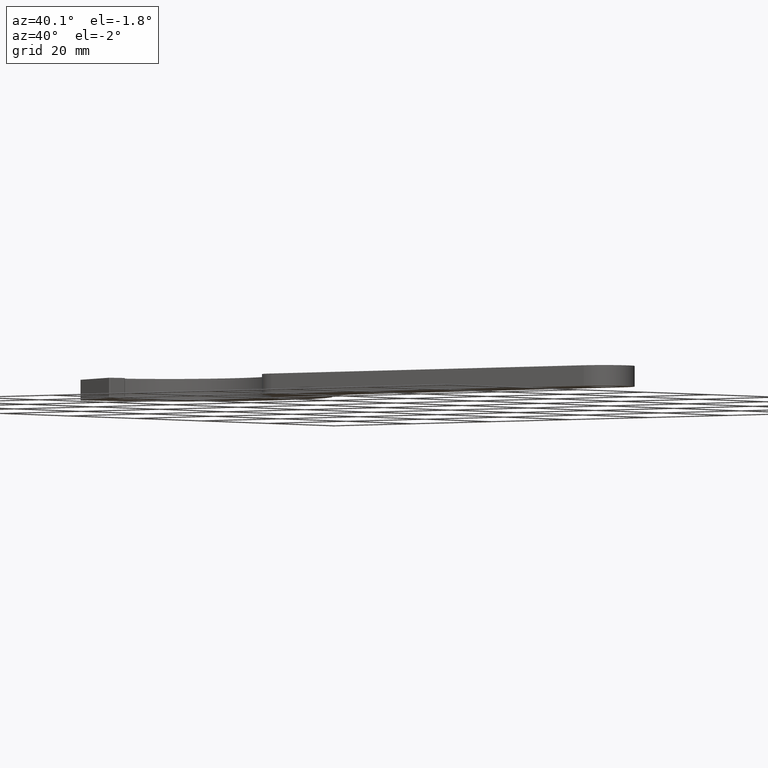
[diagram: clean part render]
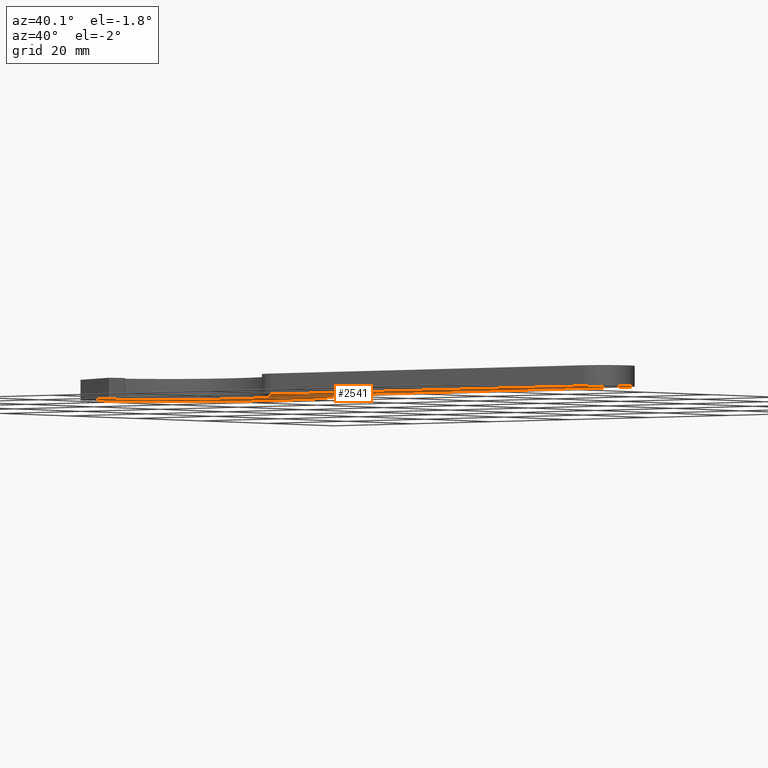
[diagram: same view with one face highlighted and labeled with its STEP entity id]
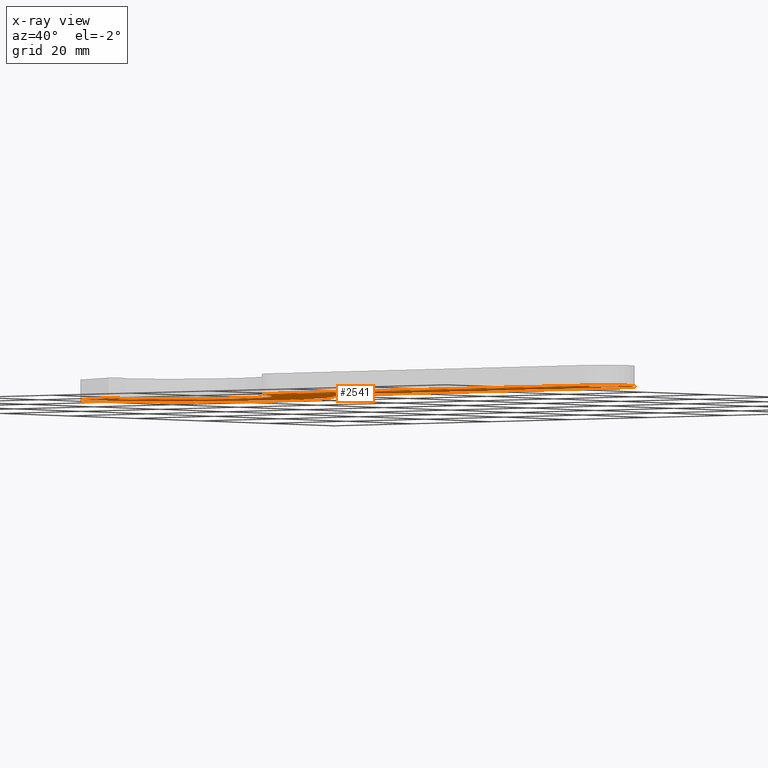
[diagram: x-ray of the same camera — body ghosted, the highlighted face saturated]
A machine part, auxiliary view. The second image highlights one B-rep face of the part: STEP entity #2541.
The next image is the same camera in x-ray: the body ghosted, the highlighted face saturated — about 0% of this face is hidden behind the body in this view.
In plain terms, the highlighted planar face has unit normal (0, 0, 1).
Its self-contained STEP definition (entity closure, byte-faithful):
#39 = ORIENTED_EDGE ( 'NONE', *, *, #7185, .F. ) ;
#66 = CARTESIAN_POINT ( 'NONE',  ( 12.43866118405925100, -5.769187135466530900, 0.0000000000000000000 ) ) ;
#141 = CARTESIAN_POINT ( 'NONE',  ( 132.4844145945849900, 6.274367385746950600, 0.0000000000000000000 ) ) ;
#208 = EDGE_CURVE ( 'NONE', #4478, #6249, #1849, .T. ) ;
#224 = DIRECTION ( 'NONE',  ( -0.0000000000000000000, -0.0000000000000000000, -1.000000000000000000 ) ) ;
#285 = EDGE_CURVE ( 'NONE', #8497, #1738, #3184, .T. ) ;
#286 = DIRECTION ( 'NONE',  ( -1.000000000000000000, 0.0000000000000000000, 0.0000000000000000000 ) ) ;
#320 = CARTESIAN_POINT ( 'NONE',  ( -0.1404072133028077500, 0.2246985115747501800, 0.0000000000000000000 ) ) ;
#342 = DIRECTION ( 'NONE',  ( 0.8987940462991024200, -0.4383711467892096900, -0.0000000000000000000 ) ) ;
#362 = DIRECTION ( 'NONE',  ( 1.000000000000000000, 0.0000000000000000000, 0.0000000000000000000 ) ) ;
#453 = CARTESIAN_POINT ( 'NONE',  ( 13.41755920003658900, -2.678962734651384900, 0.0000000000000000000 ) ) ;
#461 = CIRCLE ( 'NONE', #3595, 17.00000000000000000 ) ;
#519 = DIRECTION ( 'NONE',  ( 1.000000000000000000, 0.0000000000000000000, 0.0000000000000000000 ) ) ;
#548 = ORIENTED_EDGE ( 'NONE', *, *, #3140, .F. ) ;
#826 = CARTESIAN_POINT ( 'NONE',  ( 132.4844145945849900, 0.2743673857469433000, 0.0000000000000000000 ) ) ;
#831 = EDGE_CURVE ( 'NONE', #6622, #2778, #3787, .T. ) ;
#899 = CIRCLE ( 'NONE', #5508, 0.2500000000001005300 ) ;
#997 = EDGE_LOOP ( 'NONE', ( #3472, #548, #5222, #2917, #3012, #2062, #1603, #8109, #2109, #39, #7732, #3843, #5012, #3929 ) ) ;
#1047 = EDGE_CURVE ( 'NONE', #2778, #7964, #7898, .T. ) ;
#1311 = CARTESIAN_POINT ( 'NONE',  ( 132.4844145945849900, -5.725632614253061800, 0.0000000000000000000 ) ) ;
#1352 = DIRECTION ( 'NONE',  ( 0.0000000000000000000, 0.0000000000000000000, 1.000000000000000000 ) ) ;
#1354 = DIRECTION ( 'NONE',  ( 1.000000000000000000, 0.0000000000000000000, 0.0000000000000000000 ) ) ;
#1369 = EDGE_CURVE ( 'NONE', #8233, #5161, #899, .T. ) ;
#1423 = CARTESIAN_POINT ( 'NONE',  ( 132.4844145945849900, -5.725632614253062700, 0.0000000000000000000 ) ) ;
#1603 = ORIENTED_EDGE ( 'NONE', *, *, #831, .F. ) ;
#1734 = CARTESIAN_POINT ( 'NONE',  ( 0.1095927866972927500, 0.2246985115747501800, 0.0000000000000000000 ) ) ;
#1738 = VERTEX_POINT ( 'NONE', #2509 ) ;
#1753 = CARTESIAN_POINT ( 'NONE',  ( 13.41755920003658900, -2.678962734651384900, 0.0000000000000000000 ) ) ;
#1766 = DIRECTION ( 'NONE',  ( 0.0000000000000000000, 0.0000000000000000000, 1.000000000000000000 ) ) ;
#1793 = AXIS2_PLACEMENT_3D ( 'NONE', #2174, #224, #286 ) ;
#1796 = CARTESIAN_POINT ( 'NONE',  ( 48.36695635319991000, -2.214945994889025500, 0.0000000000000000000 ) ) ;
#1849 = CIRCLE ( 'NONE', #3420, 2.999999999998920000 ) ;
#1862 = EDGE_CURVE ( 'NONE', #7983, #5943, #6240, .T. ) ;
#1888 = EDGE_CURVE ( 'NONE', #1738, #7983, #2640, .T. ) ;
#1958 = ORIENTED_EDGE ( 'NONE', *, *, #208, .T. ) ;
#2012 = DIRECTION ( 'NONE',  ( 1.000000000000000000, 0.0000000000000000000, 0.0000000000000000000 ) ) ;
#2062 = ORIENTED_EDGE ( 'NONE', *, *, #1047, .F. ) ;
#2109 = ORIENTED_EDGE ( 'NONE', *, *, #1369, .F. ) ;
#2146 = CARTESIAN_POINT ( 'NONE',  ( 66.70285010894153300, 6.274367385746940900, 0.0000000000000000000 ) ) ;
#2174 = CARTESIAN_POINT ( 'NONE',  ( 29.08386002012753800, -8.231772052658277200, 0.0000000000000000000 ) ) ;
#2183 = CIRCLE ( 'NONE', #5760, 0.2500000000000384100 ) ;
#2245 = AXIS2_PLACEMENT_3D ( 'NONE', #1734, #1766, #2407 ) ;
#2309 = DIRECTION ( 'NONE',  ( 0.3746065934163699300, 0.9271838545666023500, 0.0000000000000000000 ) ) ;
#2402 = VECTOR ( 'NONE', #3207, 1000.000000000000000 ) ;
#2407 = DIRECTION ( 'NONE',  ( 1.000000000000000000, 0.0000000000000000000, 0.0000000000000000000 ) ) ;
#2459 = CARTESIAN_POINT ( 'NONE',  ( 53.14000000000000100, -0.7256326142530716800, 0.0000000000000000000 ) ) ;
#2498 = CIRCLE ( 'NONE', #3195, 30.19999999999999900 ) ;
#2509 = CARTESIAN_POINT ( 'NONE',  ( 53.14000000000000100, -5.725632614253071600, 0.0000000000000000000 ) ) ;
#2541 = ADVANCED_FACE ( 'NONE', ( #3884, #4082 ), #3648, .F. ) ;
#2640 = LINE ( 'NONE', #1311, #6643 ) ;
#2646 = DIRECTION ( 'NONE',  ( 0.0000000000000000000, 0.0000000000000000000, 1.000000000000000000 ) ) ;
#2712 = AXIS2_PLACEMENT_3D ( 'NONE', #8217, #4942, #6269 ) ;
#2766 = EDGE_CURVE ( 'NONE', #7964, #7857, #7565, .T. ) ;
#2778 = VERTEX_POINT ( 'NONE', #7630 ) ;
#2917 = ORIENTED_EDGE ( 'NONE', *, *, #5618, .F. ) ;
#3012 = ORIENTED_EDGE ( 'NONE', *, *, #2766, .F. ) ;
#3096 = VERTEX_POINT ( 'NONE', #2146 ) ;
#3140 = EDGE_CURVE ( 'NONE', #5633, #8497, #3768, .T. ) ;
#3167 = AXIS2_PLACEMENT_3D ( 'NONE', #4263, #6205, #7642 ) ;
#3184 = CIRCLE ( 'NONE', #6450, 5.000000000000004400 ) ;
#3195 = AXIS2_PLACEMENT_3D ( 'NONE', #5137, #7773, #519 ) ;
#3207 = DIRECTION ( 'NONE',  ( -1.000000000000000000, -1.450403193124833200E-016, 0.0000000000000000000 ) ) ;
#3277 = VECTOR ( 'NONE', #342, 1000.000000000000200 ) ;
#3420 = AXIS2_PLACEMENT_3D ( 'NONE', #826, #6111, #7430 ) ;
#3431 = CIRCLE ( 'NONE', #2245, 0.2500000000001005300 ) ;
#3472 = ORIENTED_EDGE ( 'NONE', *, *, #285, .F. ) ;
#3565 = CARTESIAN_POINT ( 'NONE',  ( -0.1354235452859361700, 0.2743673857469560200, 0.0000000000000000000 ) ) ;
#3595 = AXIS2_PLACEMENT_3D ( 'NONE', #8239, #4318, #362 ) ;
#3648 = PLANE ( 'NONE',  #3167 ) ;
#3761 = AXIS2_PLACEMENT_3D ( 'NONE', #4623, #7873, #3937 ) ;
#3768 = CIRCLE ( 'NONE', #1793, 20.20000000000000300 ) ;
#3787 = LINE ( 'NONE', #4299, #3277 ) ;
#3843 = ORIENTED_EDGE ( 'NONE', *, *, #4797, .F. ) ;
#3884 = FACE_OUTER_BOUND ( 'NONE', #997, .T. ) ;
#3929 = ORIENTED_EDGE ( 'NONE', *, *, #1888, .F. ) ;
#3937 = DIRECTION ( 'NONE',  ( 1.000000000000000000, 0.0000000000000000000, 0.0000000000000000000 ) ) ;
#3949 = CARTESIAN_POINT ( 'NONE',  ( 132.4844145945849900, 0.2743673857469433000, 0.0000000000000000000 ) ) ;
#4082 = FACE_BOUND ( 'NONE', #5395, .T. ) ;
#4116 = CARTESIAN_POINT ( 'NONE',  ( 135.4844145945839100, 0.2743673857469436900, 0.0000000000000000000 ) ) ;
#4175 = VERTEX_POINT ( 'NONE', #4556 ) ;
#4263 = CARTESIAN_POINT ( 'NONE',  ( 53.14000000000000100, -0.7256326142530716800, 0.0000000000000000000 ) ) ;
#4264 = EDGE_CURVE ( 'NONE', #6249, #4478, #6206, .T. ) ;
#4299 = CARTESIAN_POINT ( 'NONE',  ( 12.09727243372024600, -5.900233998687233400, 0.0000000000000000000 ) ) ;
#4318 = DIRECTION ( 'NONE',  ( -0.0000000000000000000, -0.0000000000000000000, -1.000000000000000000 ) ) ;
#4358 = VECTOR ( 'NONE', #8295, 1000.000000000000100 ) ;
#4478 = VERTEX_POINT ( 'NONE', #8090 ) ;
#4509 = VECTOR ( 'NONE', #2309, 1000.000000000000200 ) ;
#4545 = EDGE_CURVE ( 'NONE', #3096, #4175, #461, .T. ) ;
#4556 = CARTESIAN_POINT ( 'NONE',  ( 53.29002992332056000, 12.82945213150964600, 0.0000000000000000000 ) ) ;
#4623 = CARTESIAN_POINT ( 'NONE',  ( 12.20686522041756700, -5.675535487112424200, 0.0000000000000000000 ) ) ;
#4649 = CARTESIAN_POINT ( 'NONE',  ( 10.09685386963701400, -1.337310692897451600, 0.0000000000000000000 ) ) ;
#4797 = EDGE_CURVE ( 'NONE', #5943, #3096, #5903, .T. ) ;
#4942 = DIRECTION ( 'NONE',  ( 0.0000000000000000000, 0.0000000000000000000, 1.000000000000000000 ) ) ;
#4953 = DIRECTION ( 'NONE',  ( 0.0000000000000000000, 0.0000000000000000000, 1.000000000000000000 ) ) ;
#5012 = ORIENTED_EDGE ( 'NONE', *, *, #1862, .F. ) ;
#5069 = AXIS2_PLACEMENT_3D ( 'NONE', #3949, #2646, #5285 ) ;
#5137 = CARTESIAN_POINT ( 'NONE',  ( 29.46254935827628100, -5.725632614253076000, 0.0000000000000000000 ) ) ;
#5161 = VERTEX_POINT ( 'NONE', #320 ) ;
#5222 = ORIENTED_EDGE ( 'NONE', *, *, #7267, .F. ) ;
#5285 = DIRECTION ( 'NONE',  ( 1.000000000000000000, 0.0000000000000000000, 0.0000000000000000000 ) ) ;
#5395 = EDGE_LOOP ( 'NONE', ( #1958, #8464 ) ) ;
#5508 = AXIS2_PLACEMENT_3D ( 'NONE', #7943, #1352, #2012 ) ;
#5610 = CARTESIAN_POINT ( 'NONE',  ( -4.323256162785948300E-014, -1.930693018653562000E-013, 0.0000000000000000000 ) ) ;
#5618 = EDGE_CURVE ( 'NONE', #7857, #7285, #2183, .T. ) ;
#5633 = VERTEX_POINT ( 'NONE', #4649 ) ;
#5679 = CARTESIAN_POINT ( 'NONE',  ( 12.43866118405925100, -5.769187135466530900, 0.0000000000000000000 ) ) ;
#5751 = CARTESIAN_POINT ( 'NONE',  ( 132.4844145945849900, 6.274367385746950600, 0.0000000000000000000 ) ) ;
#5760 = AXIS2_PLACEMENT_3D ( 'NONE', #7922, #6544, #1354 ) ;
#5796 = LINE ( 'NONE', #453, #4358 ) ;
#5903 = LINE ( 'NONE', #5751, #2402 ) ;
#5943 = VERTEX_POINT ( 'NONE', #141 ) ;
#5949 = CARTESIAN_POINT ( 'NONE',  ( 13.55570351532416900, -3.004410346647175900, 0.0000000000000000000 ) ) ;
#6111 = DIRECTION ( 'NONE',  ( 0.0000000000000000000, 0.0000000000000000000, 1.000000000000000000 ) ) ;
#6205 = DIRECTION ( 'NONE',  ( 0.0000000000000000000, 0.0000000000000000000, 1.000000000000000000 ) ) ;
#6206 = CIRCLE ( 'NONE', #2712, 2.999999999998920000 ) ;
#6240 = CIRCLE ( 'NONE', #5069, 6.000000000000005300 ) ;
#6249 = VERTEX_POINT ( 'NONE', #4116 ) ;
#6269 = DIRECTION ( 'NONE',  ( 1.000000000000000000, 0.0000000000000000000, 0.0000000000000000000 ) ) ;
#6450 = AXIS2_PLACEMENT_3D ( 'NONE', #2459, #4953, #6931 ) ;
#6544 = DIRECTION ( 'NONE',  ( 0.0000000000000000000, 0.0000000000000000000, 1.000000000000000000 ) ) ;
#6579 = DIRECTION ( 'NONE',  ( 1.000000000000000000, 1.202476464994119400E-016, -0.0000000000000000000 ) ) ;
#6622 = VERTEX_POINT ( 'NONE', #5610 ) ;
#6643 = VECTOR ( 'NONE', #6579, 1000.000000000000000 ) ;
#6931 = DIRECTION ( 'NONE',  ( 1.000000000000000000, 0.0000000000000000000, 0.0000000000000000000 ) ) ;
#7185 = EDGE_CURVE ( 'NONE', #4175, #8233, #2498, .T. ) ;
#7267 = EDGE_CURVE ( 'NONE', #7285, #5633, #5796, .T. ) ;
#7285 = VERTEX_POINT ( 'NONE', #1753 ) ;
#7430 = DIRECTION ( 'NONE',  ( 1.000000000000000000, 0.0000000000000000000, 0.0000000000000000000 ) ) ;
#7565 = LINE ( 'NONE', #5679, #4509 ) ;
#7630 = CARTESIAN_POINT ( 'NONE',  ( 12.09727243372024600, -5.900233998687232500, 0.0000000000000000000 ) ) ;
#7642 = DIRECTION ( 'NONE',  ( 1.000000000000000000, 0.0000000000000000000, -0.0000000000000000000 ) ) ;
#7653 = EDGE_CURVE ( 'NONE', #5161, #6622, #3431, .T. ) ;
#7732 = ORIENTED_EDGE ( 'NONE', *, *, #4545, .F. ) ;
#7773 = DIRECTION ( 'NONE',  ( 0.0000000000000000000, 0.0000000000000000000, 1.000000000000000000 ) ) ;
#7857 = VERTEX_POINT ( 'NONE', #5949 ) ;
#7873 = DIRECTION ( 'NONE',  ( 0.0000000000000000000, 0.0000000000000000000, 1.000000000000000000 ) ) ;
#7898 = CIRCLE ( 'NONE', #3761, 0.2500000000000366400 ) ;
#7922 = CARTESIAN_POINT ( 'NONE',  ( 13.32390755168248300, -2.910758698293073500, 0.0000000000000000000 ) ) ;
#7943 = CARTESIAN_POINT ( 'NONE',  ( 0.1095927866972927500, 0.2246985115747501800, 0.0000000000000000000 ) ) ;
#7964 = VERTEX_POINT ( 'NONE', #66 ) ;
#7983 = VERTEX_POINT ( 'NONE', #1423 ) ;
#8090 = CARTESIAN_POINT ( 'NONE',  ( 129.4844145945860700, 0.2743673857469433000, 0.0000000000000000000 ) ) ;
#8109 = ORIENTED_EDGE ( 'NONE', *, *, #7653, .F. ) ;
#8217 = CARTESIAN_POINT ( 'NONE',  ( 132.4844145945849900, 0.2743673857469433000, 0.0000000000000000000 ) ) ;
#8233 = VERTEX_POINT ( 'NONE', #3565 ) ;
#8239 = CARTESIAN_POINT ( 'NONE',  ( 66.70285010894153300, 23.27436738574694200, 0.0000000000000000000 ) ) ;
#8295 = DIRECTION ( 'NONE',  ( -0.9271838545666025700, 0.3746065934163694300, 0.0000000000000000000 ) ) ;
#8464 = ORIENTED_EDGE ( 'NONE', *, *, #4264, .T. ) ;
#8497 = VERTEX_POINT ( 'NONE', #1796 ) ;